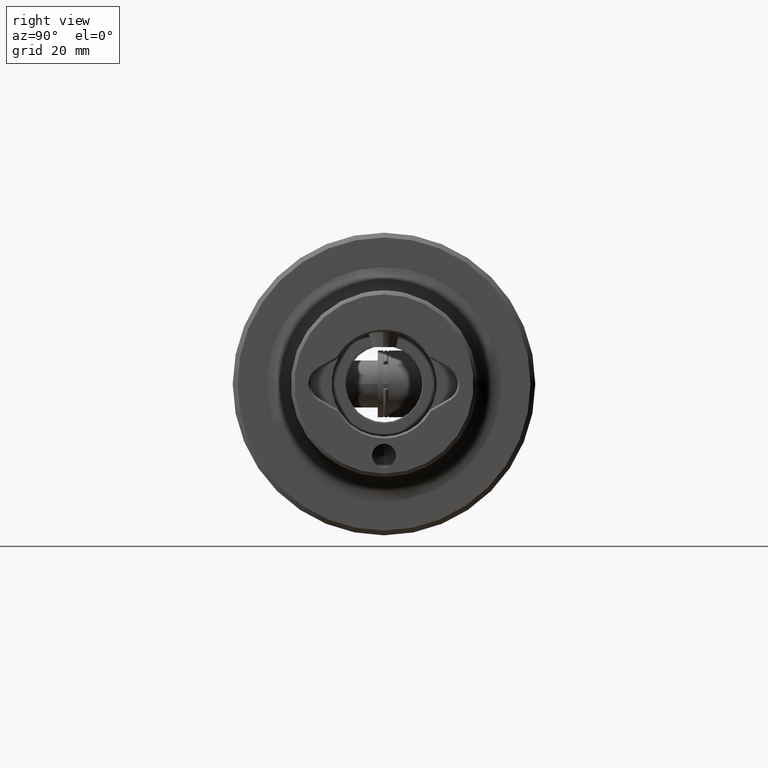
[diagram: clean part render]
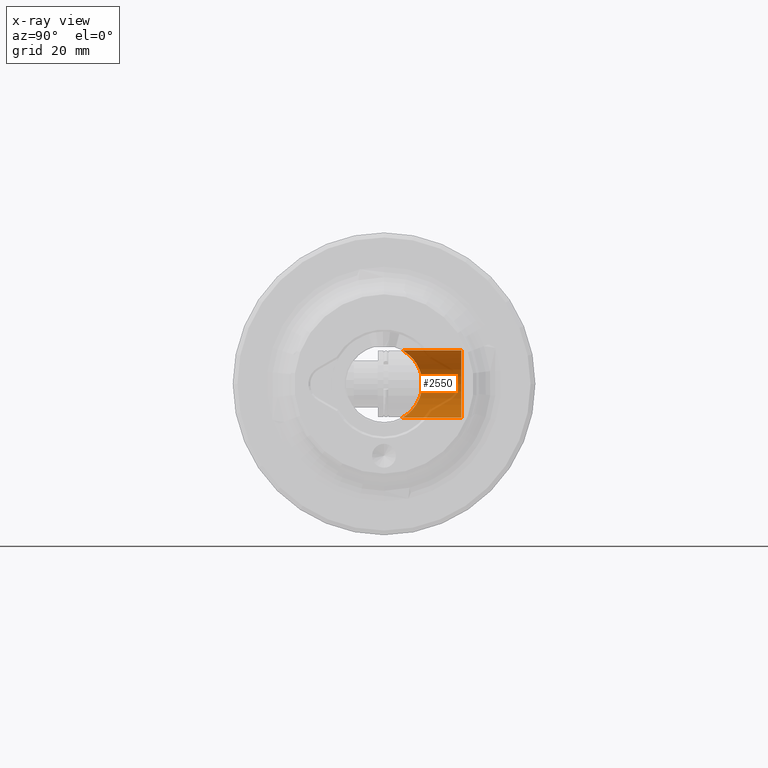
[diagram: x-ray — body ghosted, one internal face saturated and labeled with its STEP entity id]
A machine part, right view, then the same camera in x-ray: the body is ghosted and one INTERNAL B-rep face — a face not visible from any outside direction — is saturated and labeled: STEP entity #2550.
In plain terms, the highlighted cylindrical surface (edge-blend (fillet) strip) has radius 7 mm, axis along (0, 1, 0).
Its self-contained STEP definition (entity closure, byte-faithful):
#2 = CARTESIAN_POINT ( 'NONE',  ( 27.85707477994499800, 4.977010234343023100, -6.269956170842669400 ) ) ;
#13 = CARTESIAN_POINT ( 'NONE',  ( 24.42139503826952000, 7.633913014964920600, -2.404133595501873000 ) ) ;
#28 = CARTESIAN_POINT ( 'NONE',  ( 24.78435316828818100, 7.322888826826122100, 3.253468837334273300 ) ) ;
#50 = CARTESIAN_POINT ( 'NONE',  ( 29.31751508531602800, 4.217140374111854100, 6.798871005101090300 ) ) ;
#82 = CYLINDRICAL_SURFACE ( 'NONE', #2495, 7.000000000000000000 ) ;
#250 = VERTEX_POINT ( 'NONE', #2349 ) ;
#394 = VECTOR ( 'NONE', #2920, 1000.000000000000000 ) ;
#398 = CARTESIAN_POINT ( 'NONE',  ( 26.94886962702531400, 5.603198860898253000, -5.712612966352317300 ) ) ;
#416 = CARTESIAN_POINT ( 'NONE',  ( 24.20794932454040800, 7.818651992122297200, -1.710837691664582900 ) ) ;
#430 = CARTESIAN_POINT ( 'NONE',  ( 25.52746682110644400, 6.702835456357098200, 4.387530983107531300 ) ) ;
#447 = CARTESIAN_POINT ( 'NONE',  ( 30.01791474980997900, 3.988469878905457600, 6.935044079988341700 ) ) ;
#492 = VERTEX_POINT ( 'NONE', #3710 ) ;
#585 = CARTESIAN_POINT ( 'NONE',  ( 31.00000000000000000, -31.63500000000000500, 0.0000000000000000000 ) ) ;
#613 = CARTESIAN_POINT ( 'NONE',  ( 31.00000000000000000, -31.63500000000000500, 7.000000000000000000 ) ) ;
#799 = CARTESIAN_POINT ( 'NONE',  ( 30.75341472122459100, 3.872983346207417500, -7.000000000000002700 ) ) ;
#818 = CARTESIAN_POINT ( 'NONE',  ( 26.44179999664594800, 5.980386702605176000, -5.316827314838425500 ) ) ;
#826 = CARTESIAN_POINT ( 'NONE',  ( 31.00000000000000000, 16.15000000000000200, -6.999999999999999100 ) ) ;
#830 = CARTESIAN_POINT ( 'NONE',  ( 24.00090422832444400, 7.999208800510261100, -0.5123487462078587500 ) ) ;
#846 = CARTESIAN_POINT ( 'NONE',  ( 26.27584553510029500, 6.108056706286470600, 5.170014478738929500 ) ) ;
#867 = CARTESIAN_POINT ( 'NONE',  ( 30.74853928286104900, 3.872983346207415200, 6.999999999999998200 ) ) ;
#899 = CARTESIAN_POINT ( 'NONE',  ( 31.00000000000000000, 16.15000000000000200, 6.999999999999999100 ) ) ;
#963 = LINE ( 'NONE', #613, #4229 ) ;
#992 = DIRECTION ( 'NONE',  ( -0.0000000000000000000, 1.000000000000000000, -0.0000000000000000000 ) ) ;
#1166 = FACE_OUTER_BOUND ( 'NONE', #4641, .T. ) ;
#1214 = ORIENTED_EDGE ( 'NONE', *, *, #4802, .T. ) ;
#1216 = CARTESIAN_POINT ( 'NONE',  ( 25.81916881442154500, 6.465618769444693800, -4.726870835284254100 ) ) ;
#1232 = CARTESIAN_POINT ( 'NONE',  ( 24.01259493686569300, 7.988971967116974300, 0.4866045937506612900 ) ) ;
#1251 = CARTESIAN_POINT ( 'NONE',  ( 26.77208157100740800, 5.732635112101781300, 5.583075651238133700 ) ) ;
#1379 = VERTEX_POINT ( 'NONE', #3899 ) ;
#1585 = VERTEX_POINT ( 'NONE', #826 ) ;
#1609 = CARTESIAN_POINT ( 'NONE',  ( 30.50655199385512600, 3.896853369577714800, -6.986939365355582700 ) ) ;
#1614 = CARTESIAN_POINT ( 'NONE',  ( 31.00000000000000000, 16.15000000000000200, 0.0000000000000000000 ) ) ;
#1628 = CARTESIAN_POINT ( 'NONE',  ( 25.14813011631007800, 7.017061381128082000, -3.847834655708963300 ) ) ;
#1644 = CARTESIAN_POINT ( 'NONE',  ( 24.10246520295656200, 7.910458981541825800, 1.218010795547846300 ) ) ;
#1660 = CARTESIAN_POINT ( 'NONE',  ( 27.47539365466653300, 5.230696321363130800, 6.062862008288854900 ) ) ;
#1665 = CIRCLE ( 'NONE', #3225, 6.999999999999999100 ) ;
#1786 = DIRECTION ( 'NONE',  ( -1.432360404464315800E-016, 1.000000000000000000, -0.0000000000000000000 ) ) ;
#1929 = EDGE_CURVE ( 'NONE', #1379, #4564, #2504, .T. ) ;
#2025 = CARTESIAN_POINT ( 'NONE',  ( 29.78019303000144900, 4.054865476716297000, -6.896872378908236500 ) ) ;
#2030 = DIRECTION ( 'NONE',  ( -1.000000000000000000, 0.0000000000000000000, 0.0000000000000000000 ) ) ;
#2037 = CARTESIAN_POINT ( 'NONE',  ( 24.79955884668913100, 7.310389463004233900, -3.256820414374531400 ) ) ;
#2055 = CARTESIAN_POINT ( 'NONE',  ( 24.26770867588235300, 7.766746700706383100, 1.932364216009925000 ) ) ;
#2072 = CARTESIAN_POINT ( 'NONE',  ( 28.45650230898549900, 4.630570762695049000, 6.525251823769629300 ) ) ;
#2312 = LINE ( 'NONE', #2498, #394 ) ;
#2349 = CARTESIAN_POINT ( 'NONE',  ( 31.00000000000003200, 3.872983346207529800, 7.000000000000008000 ) ) ;
#2433 = CARTESIAN_POINT ( 'NONE',  ( 28.65990889001585600, 4.513167217921821200, -6.611679281401893400 ) ) ;
#2448 = CARTESIAN_POINT ( 'NONE',  ( 24.50650095462511800, 7.560630500432983700, -2.624662021152095000 ) ) ;
#2467 = CARTESIAN_POINT ( 'NONE',  ( 24.50085358802247300, 7.565481669576086300, 2.610733071131222000 ) ) ;
#2471 = ORIENTED_EDGE ( 'NONE', *, *, #1929, .T. ) ;
#2480 = CARTESIAN_POINT ( 'NONE',  ( 29.09602210038190200, 4.311558885268356200, 6.739864978118575300 ) ) ;
#2495 = AXIS2_PLACEMENT_3D ( 'NONE', #585, #992, #2623 ) ;
#2498 = CARTESIAN_POINT ( 'NONE',  ( 31.00000000000000000, -31.63500000000000500, -7.000000000000000000 ) ) ;
#2504 = CIRCLE ( 'NONE', #5287, 6.999999999999999100 ) ;
#2550 = ADVANCED_FACE ( 'NONE', ( #1166 ), #82, .F. ) ;
#2623 = DIRECTION ( 'NONE',  ( 0.0000000000000000000, 0.0000000000000000000, 1.000000000000000000 ) ) ;
#2698 = B_SPLINE_CURVE_WITH_KNOTS ( 'NONE', 3,
 ( #3653, #799, #1609, #4470, #2025, #4878, #2433, #2, #2857, #398, #3263, #818, #3668, #1216, #4088, #1628, #4486, #2037, #4901, #2448, #13, #2870, #416, #3281, #830, #3685, #1232, #4101, #1644, #4499, #2055, #4916, #2467, #28, #2884, #430, #3298, #846, #3698, #1251, #4116, #1660, #4518, #2072, #4933, #2480, #50, #2900, #447, #3314, #867, #3714 ),
 .UNSPECIFIED., .F., .F.,
 ( 4, 2, 2, 2, 2, 2, 2, 2, 2, 2, 2, 2, 2, 2, 2, 2, 2, 2, 2, 2, 2, 2, 2, 2, 2, 4 ),
 ( 0.02371444517806536500, 0.02445537776351820700, 0.02519631034897104600, 0.02667817551987673000, 0.02816004069078241100, 0.02890097327623525300, 0.02964190586168809900, 0.03112377103259379000, 0.03186470361804663600, 0.03260563620349948800, 0.03334656878895234100, 0.03408750137440518700, 0.03556936654531088500, 0.03631029913076373700, 0.03705123171621658300, 0.03779216430166943600, 0.03853309688712228100, 0.04001496205802797900, 0.04149682722893367800, 0.04223775981438652300, 0.04297869239983936900, 0.04446055757074505300, 0.04520149015619789900, 0.04594242274165075100, 0.04668335532710359000, 0.04742428791255644300 ),
 .UNSPECIFIED. ) ;
#2857 = CARTESIAN_POINT ( 'NONE',  ( 27.48251403914352800, 5.225842342489489300, -6.067100569784237500 ) ) ;
#2870 = CARTESIAN_POINT ( 'NONE',  ( 24.27183329226399900, 7.763170223860410800, -1.946708591556181700 ) ) ;
#2884 = CARTESIAN_POINT ( 'NONE',  ( 25.01472903792675200, 7.127611959860361800, 3.657263872402699300 ) ) ;
#2900 = CARTESIAN_POINT ( 'NONE',  ( 29.77802741755636600, 4.055457364967495000, 6.896534306439681600 ) ) ;
#2920 = DIRECTION ( 'NONE',  ( -0.0000000000000000000, 1.000000000000000000, -0.0000000000000000000 ) ) ;
#3225 = AXIS2_PLACEMENT_3D ( 'NONE', #4241, #1786, #4649 ) ;
#3263 = CARTESIAN_POINT ( 'NONE',  ( 26.77525854670176400, 5.730294773337266900, -5.585463241233657800 ) ) ;
#3281 = CARTESIAN_POINT ( 'NONE',  ( 24.05466032900178800, 7.952056936992423900, -0.9989638608996127500 ) ) ;
#3298 = CARTESIAN_POINT ( 'NONE',  ( 25.81104634559652700, 6.472103622738505800, 4.718209453474957900 ) ) ;
#3314 = CARTESIAN_POINT ( 'NONE',  ( 30.50233205902818400, 3.897572823664293500, 6.986533793702784000 ) ) ;
#3401 = EDGE_CURVE ( 'NONE', #492, #250, #2698, .T. ) ;
#3477 = DIRECTION ( 'NONE',  ( -0.0000000000000000000, 1.000000000000000000, -0.0000000000000000000 ) ) ;
#3568 = ORIENTED_EDGE ( 'NONE', *, *, #3401, .F. ) ;
#3653 = CARTESIAN_POINT ( 'NONE',  ( 31.00000000000000000, 3.872983346207416100, -7.000000000000000000 ) ) ;
#3668 = CARTESIAN_POINT ( 'NONE',  ( 26.28152545996070400, 6.103671481951041100, -5.175140377973498600 ) ) ;
#3685 = CARTESIAN_POINT ( 'NONE',  ( 23.99956464490028600, 8.000380935567907400, 0.2374143082818973300 ) ) ;
#3698 = CARTESIAN_POINT ( 'NONE',  ( 26.43810958514765400, 5.983197743966739400, 5.313678933897081800 ) ) ;
#3710 = CARTESIAN_POINT ( 'NONE',  ( 31.00000000000000000, 3.872983346207416100, -7.000000000000000000 ) ) ;
#3714 = CARTESIAN_POINT ( 'NONE',  ( 31.00000000000003200, 3.872983346207529800, 7.000000000000008000 ) ) ;
#3899 = CARTESIAN_POINT ( 'NONE',  ( 24.00000000000000000, 16.15000000000000200, 0.0000000000000000000 ) ) ;
#4088 = CARTESIAN_POINT ( 'NONE',  ( 25.53525059416265500, 6.696459006977326200, -4.397427045972274400 ) ) ;
#4101 = CARTESIAN_POINT ( 'NONE',  ( 24.06404719125110600, 7.944009374381276500, 0.9763053732221769200 ) ) ;
#4116 = CARTESIAN_POINT ( 'NONE',  ( 26.94395453693564600, 5.606767190425699700, 5.709096391447112700 ) ) ;
#4229 = VECTOR ( 'NONE', #3477, 1000.000000000000000 ) ;
#4241 = CARTESIAN_POINT ( 'NONE',  ( 31.00000000000000000, 16.15000000000000200, 0.0000000000000000000 ) ) ;
#4321 = ORIENTED_EDGE ( 'NONE', *, *, #4619, .F. ) ;
#4470 = CARTESIAN_POINT ( 'NONE',  ( 30.01610137488169600, 3.988738115460893900, -6.934894096193116500 ) ) ;
#4475 = DIRECTION ( 'NONE',  ( -1.432360404464315800E-016, 1.000000000000000000, -0.0000000000000000000 ) ) ;
#4486 = CARTESIAN_POINT ( 'NONE',  ( 25.02546966226504200, 7.119784853606724100, -3.654769069399911500 ) ) ;
#4499 = CARTESIAN_POINT ( 'NONE',  ( 24.20401643006872000, 7.822069272577858900, 1.695330024425967900 ) ) ;
#4518 = CARTESIAN_POINT ( 'NONE',  ( 27.85006981514655100, 4.981293055620331400, 6.266666362729792700 ) ) ;
#4564 = VERTEX_POINT ( 'NONE', #899 ) ;
#4619 = EDGE_CURVE ( 'NONE', #250, #4564, #963, .T. ) ;
#4641 = EDGE_LOOP ( 'NONE', ( #3568, #4757, #1214, #2471, #4321 ) ) ;
#4649 = DIRECTION ( 'NONE',  ( -1.000000000000000000, 0.0000000000000000000, 0.0000000000000000000 ) ) ;
#4757 = ORIENTED_EDGE ( 'NONE', *, *, #5080, .T. ) ;
#4802 = EDGE_CURVE ( 'NONE', #1585, #1379, #1665, .T. ) ;
#4878 = CARTESIAN_POINT ( 'NONE',  ( 29.09325734288529100, 4.295542750490961100, -6.751551159515619500 ) ) ;
#4901 = CARTESIAN_POINT ( 'NONE',  ( 24.69557899288613000, 7.398873424159360100, -3.051009069574202500 ) ) ;
#4916 = CARTESIAN_POINT ( 'NONE',  ( 24.41611980913625500, 7.638460984242292400, 2.389623310996396900 ) ) ;
#4933 = CARTESIAN_POINT ( 'NONE',  ( 28.66592305446397000, 4.517999929900968300, 6.603256513101747800 ) ) ;
#5080 = EDGE_CURVE ( 'NONE', #492, #1585, #2312, .T. ) ;
#5287 = AXIS2_PLACEMENT_3D ( 'NONE', #1614, #4475, #2030 ) ;